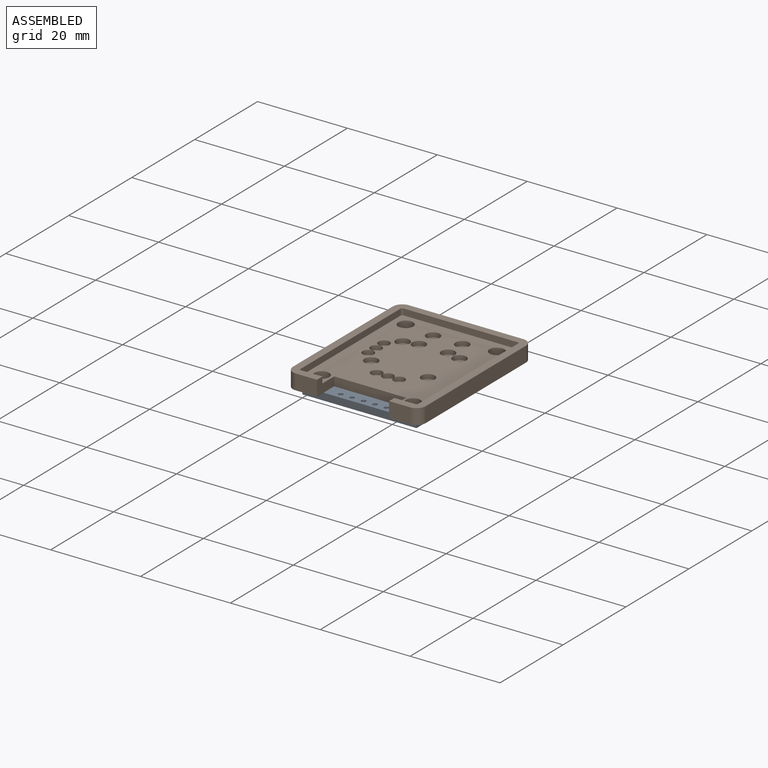
[diagram: assembled view]
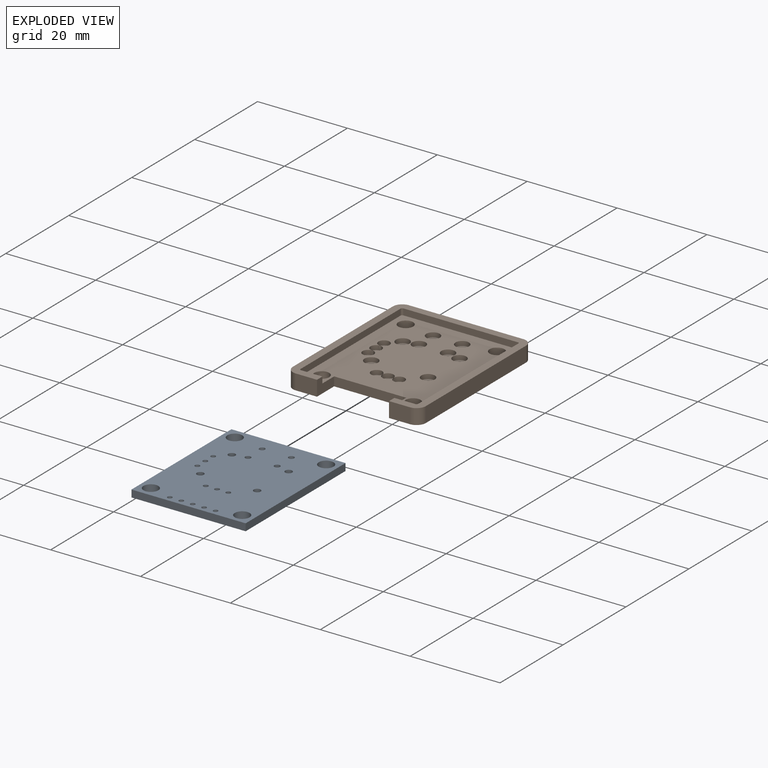
[diagram: exploded view]
GUIDED TOUR — FREECAD ASSEMBLY "thumbstick-breakout-orig"

This assembly has 2 components, labeled P0..P1 below (a component is one placed body or linked part; the same part can appear more than once), held together by 0 modeled joints plus 1 derived contact edge. A joint is a constraint between two components; its type names the relative motion it leaves free:
  CONTACT — a derived adjacency edge — the two components touch in the source model (clearance under 2% of the assembly's diagonal); it is measured from the geometry, not a modeled constraint.
Axis/direction vectors are unit vectors and 'through' points are millimeter coordinates, both in the assembly's world frame.

MATES
  1. CONTACT "contact_0_1": P0 <-> P1, contact direction (0.000, 1.000, 0.000) through (4.18, 2.70, 0.00) mm (derived from contact, not a modeled constraint)

ASSEMBLY ORDER
  1. P1 — the base component [order verified]
  2. P0 [order verified]
Order-tag legend:
  [order verified] — this step's position reverses a verified removal order: the component was checked to insert without passing through the ones already placed.

Of the 2 components, 1 carries a construction recipe — the FreeCAD feature program (sketches with constraints, then the solid features that consume them) that regenerates the part from scratch, quoted from this document or from the linked companion document it references; the rest are supplied as boundary geometry only. The tour below walks the components in assembly order: each is shown spotlighted twice — in the assembled view, then in the exploded view, where a leader line traces a displaced component back to its assembled socket (components that stay in place when exploded have no leader line; saturated green if recipe-attached, orange if geometry-only; every other component desaturated gray) — followed by its recipe or geometry summary and the mates that hold it.
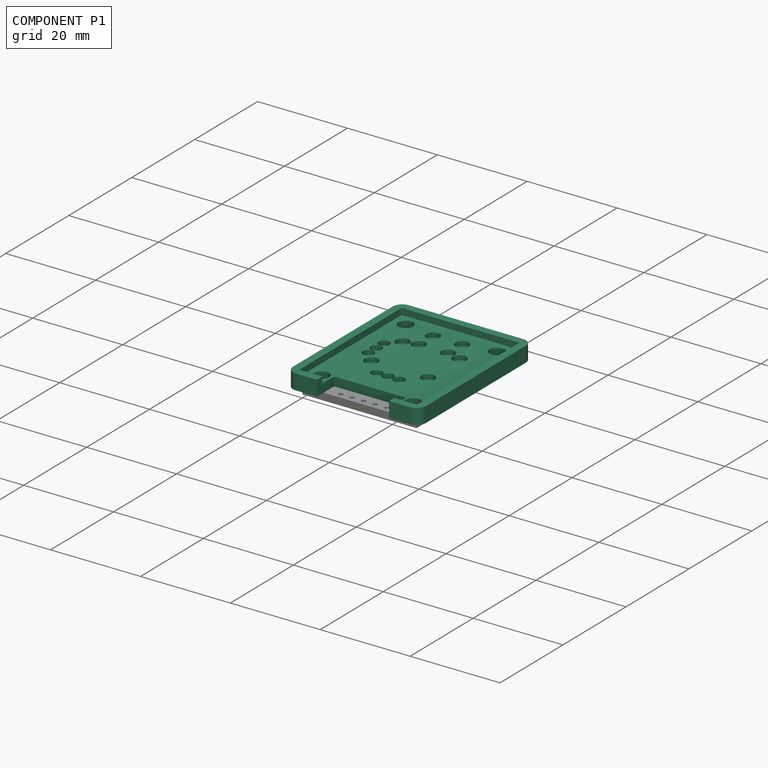
[diagram: component P1 — assembled]
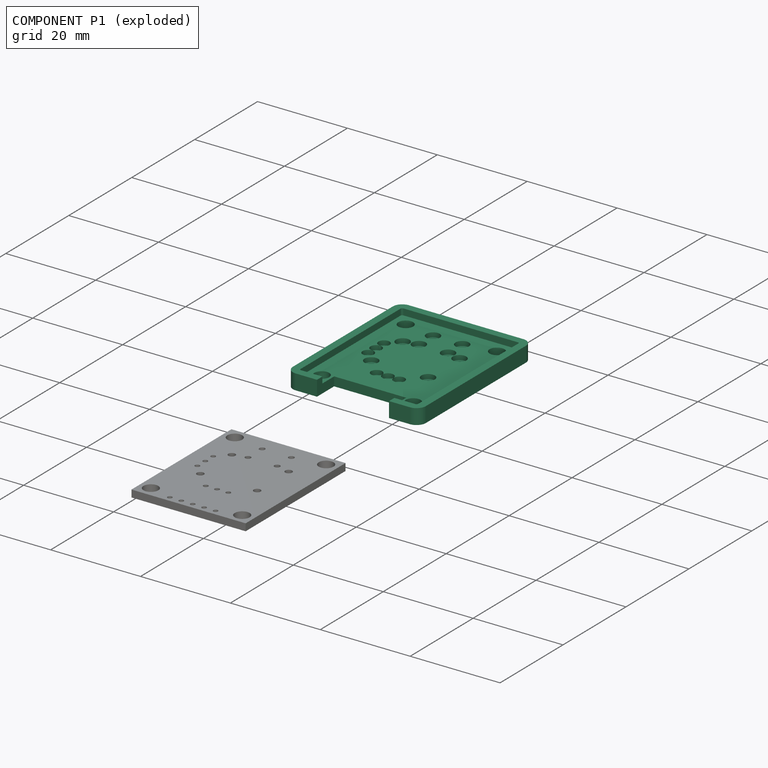
[diagram: component P1 — exploded]
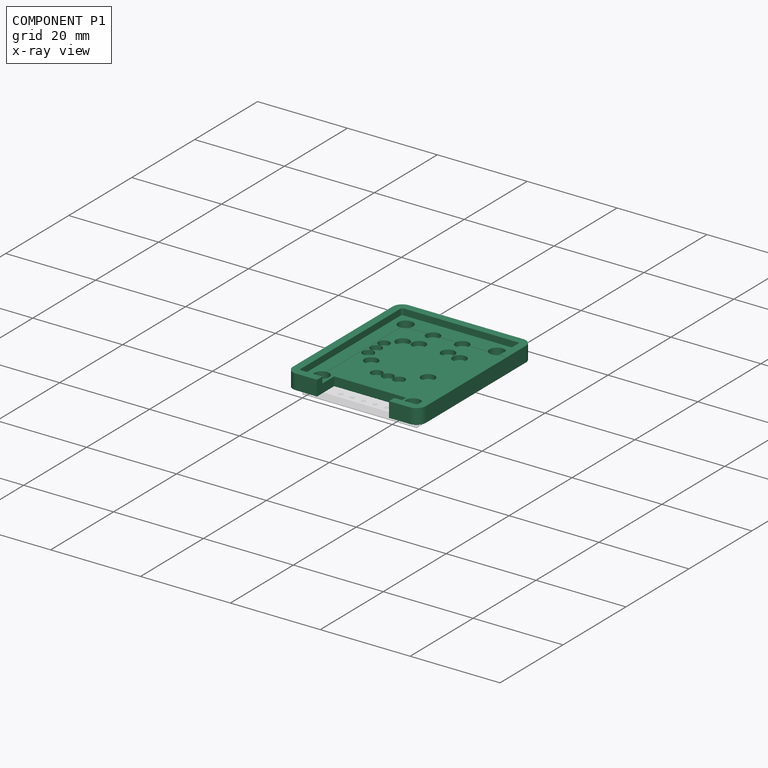
[diagram: component P1 — x-ray view]
COMPONENT P1 — recipe-attached ("case", modeled in this document).
Held by: resting contact with P0 (derived edge).
Construction recipe (the document's own serialized feature program — sketch geometry with constraints, then the solid features built on it; lengths are millimeters unless a unit is written):

FEATURE [Sketcher::SketchObject] Sketch003
  ArcFitTolerance = 1e-06
  FullyConstrained = false
  MakeInternals = false
  sketch-geometry (8):
    g0: LineSegment StartX=-2.1 StartY=31.75 StartZ=0 EndX=-2.1 EndY=0 EndZ=0
    g1: ArcOfCircle CenterX=0 CenterY=0 CenterZ=0 NormalX=0 NormalY=0 NormalZ=1 AngleXU=0 Radius=2.1 StartAngle=3.14159 EndAngle=4.71239
    g2: LineSegment StartX=-4e-16 StartY=-2.1 StartZ=0 EndX=25.4 EndY=-2.1 EndZ=0
    g3: ArcOfCircle CenterX=25.4 CenterY=0 CenterZ=0 NormalX=0 NormalY=0 NormalZ=1 AngleXU=1.5708 Radius=2.1 StartAngle=3.14159 EndAngle=4.71239
    g4: LineSegment StartX=27.5 StartY=-6e-16 StartZ=0 EndX=27.5 EndY=31.75 EndZ=0
    g5: ArcOfCircle CenterX=25.4 CenterY=31.75 CenterZ=0 NormalX=0 NormalY=0 NormalZ=1 AngleXU=-3.14159 Radius=2.1 StartAngle=3.14159 EndAngle=4.71239
    g6: LineSegment StartX=25.4 StartY=33.85 StartZ=0 EndX=0 EndY=33.85 EndZ=0
    g7: ArcOfCircle CenterX=0 CenterY=31.75 CenterZ=0 NormalX=0 NormalY=0 NormalZ=1 AngleXU=-1.5708 Radius=2.1 StartAngle=3.14159 EndAngle=4.71239
  constraints (12):
    c: Vertical(g0)
    c: Coincident(g0,g1)
    c: Coincident(g1,g2)
    c: Horizontal(g2)
    c: Coincident(g2,g3)
    c: Coincident(g3,g4)
    c: Vertical(g4)
    c: Coincident(g4,g5)
    c: Coincident(g5,g6)
    c: Horizontal(g6)
    c: Coincident(g6,g7)
    c: Coincident(g7,g0)
FEATURE [PartDesign::ShapeBinder] ShapeBinder
  Placement = pos=(-137.3,117.78,0) rot=(0,0,1;0rad)
  Support = -> [Pcb_bbd4]
  TraceSupport = false
FEATURE [Sketcher::SketchObject] Sketch002
  ArcFitTolerance = 1e-06
  ExternalGeometry = -> [ShapeBinder]
  FullyConstrained = false
  MakeInternals = false
  sketch-geometry (16):
    g0: Circle CenterX=2.54 CenterY=29.21 CenterZ=0 NormalX=0 NormalY=0 NormalZ=1 AngleXU=0 Radius=1.651
    g1: Circle CenterX=22.86 CenterY=29.21 CenterZ=0 NormalX=0 NormalY=0 NormalZ=1 AngleXU=0 Radius=1.651
    g2: Circle CenterX=22.86 CenterY=2.54 CenterZ=0 NormalX=0 NormalY=0 NormalZ=1 AngleXU=0 Radius=1.651
    g3: Circle CenterX=2.54 CenterY=2.54 CenterZ=0 NormalX=0 NormalY=0 NormalZ=1 AngleXU=0 Radius=1.651
    g4: LineSegment StartX=-2.1 StartY=31.75 StartZ=0 EndX=-2.1 EndY=-7.27461e-07 EndZ=0
    g5: ArcOfCircle CenterX=1.003e-13 CenterY=0 CenterZ=0 NormalX=0 NormalY=0 NormalZ=1 AngleXU=0 Radius=2.1 StartAngle=3.14159 EndAngle=4.71239
    g6: ArcOfCircle CenterX=25.4 CenterY=0 CenterZ=0 NormalX=0 NormalY=0 NormalZ=1 AngleXU=0 Radius=2.1 StartAngle=4.71239 EndAngle=6.28318
    g7: LineSegment StartX=27.5 StartY=-6.45077e-07 StartZ=0 EndX=27.5 EndY=31.75 EndZ=0
    g8: ArcOfCircle CenterX=25.4 CenterY=31.75 CenterZ=0 NormalX=0 NormalY=0 NormalZ=1 AngleXU=0 Radius=2.1 StartAngle=0 EndAngle=1.5708
    g9: LineSegment StartX=25.4 StartY=33.85 StartZ=0 EndX=6.86269e-07 EndY=33.85 EndZ=0
    g10: ArcOfCircle CenterX=0 CenterY=31.75 CenterZ=0 NormalX=0 NormalY=0 NormalZ=1 AngleXU=0 Radius=2.1 StartAngle=1.5708 EndAngle=3.14159
    g11: LineSegment StartX=20.762 StartY=-2.1 StartZ=0 EndX=20.762 EndY=3.34784 EndZ=0
    g12: LineSegment StartX=20.762 StartY=3.34784 StartZ=0 EndX=4.72625 EndY=3.34784 EndZ=0
    g13: LineSegment StartX=4.72625 StartY=3.34784 StartZ=0 EndX=4.72625 EndY=-2.1 EndZ=0
    g14: LineSegment StartX=20.762 StartY=-2.1 StartZ=0 EndX=25.4 EndY=-2.1 EndZ=0
    g15: LineSegment StartX=4.72625 StartY=-2.1 StartZ=0 EndX=4.11922e-08 EndY=-2.1 EndZ=0
  constraints (28):
    c: Coincident(g0,g-3)
    c: Equal(g0,g-3)
    c: Coincident(g1,g-4)
    c: Equal(g1,g-4)
    c: Coincident(g2,g-5)
    c: Equal(g2,g-5)
    c: Coincident(g3,g-6)
    c: Equal(g3,g-6)
    c: Vertical(g4)
    c: Coincident(g4,g5)
    c: Coincident(g6,g7)
    c: Vertical(g7)
    c: Coincident(g7,g8)
    c: Coincident(g8,g9)
    c: Horizontal(g9)
    c: Coincident(g9,g10)
    c: Coincident(g10,g4)
    c: Coincident(g11,g12)
    c: Coincident(g12,g13)
    c: Horizontal(g12)
    c: Vertical(g11)
    c: Vertical(g13)
    c: Coincident(g11,g14)
    c: Coincident(g14,g6)
    c: Horizontal(g14)
    c: Coincident(g13,g15)
    c: Coincident(g15,g5)
    c: Horizontal(g15)
FEATURE [PartDesign::Pad] Pad
  Direction = (0,0,1)
  Length = 2
  Length2 = 10
  Profile = -> Sketch002
  ReferenceAxis = -> Sketch002 [N_Axis]
  Refine = true
  Suppressed = false
  Type = 0
FEATURE [Sketcher::SketchObject] Sketch004
  ArcFitTolerance = 1e-06
  AttachmentSupport = -> [Pad]
  ExternalGeometry = -> [ShapeBinder]
  FullyConstrained = true
  MakeInternals = false
  MapMode = 5
  Placement = pos=(0,0,2) rot=(0,0,1;0rad)
  sketch-geometry (14):
    g0: Circle CenterX=9.45 CenterY=28.03 CenterZ=0 NormalX=0 NormalY=0 NormalZ=1 AngleXU=0 Radius=1.5
    g1: Circle CenterX=15.95 CenterY=28.03 CenterZ=0 NormalX=0 NormalY=0 NormalZ=1 AngleXU=0 Radius=1.5
    g2: Circle CenterX=19.025 CenterY=22.78 CenterZ=0 NormalX=0 NormalY=0 NormalZ=1 AngleXU=0 Radius=1.5
    g3: Circle CenterX=15.95 CenterY=23.53 CenterZ=0 NormalX=0 NormalY=0 NormalZ=1 AngleXU=0 Radius=1.5
    g4: Circle CenterX=9.45 CenterY=23.53 CenterZ=0 NormalX=0 NormalY=0 NormalZ=1 AngleXU=0 Radius=1.5
    g5: Circle CenterX=6.375 CenterY=22.78 CenterZ=0 NormalX=0 NormalY=0 NormalZ=1 AngleXU=0 Radius=1.5
    g6: Circle CenterX=3.97 CenterY=20.28 CenterZ=0 NormalX=0 NormalY=0 NormalZ=1 AngleXU=0 Radius=1.25
    g7: Circle CenterX=3.97 CenterY=17.78 CenterZ=0 NormalX=0 NormalY=0 NormalZ=1 AngleXU=0 Radius=1.25
    g8: Circle CenterX=3.97 CenterY=15.28 CenterZ=0 NormalX=0 NormalY=0 NormalZ=1 AngleXU=0 Radius=1.25
    g9: Circle CenterX=6.375 CenterY=12.78 CenterZ=0 NormalX=0 NormalY=0 NormalZ=1 AngleXU=0 Radius=1.5
    g10: Circle CenterX=10.2 CenterY=9.05 CenterZ=0 NormalX=0 NormalY=0 NormalZ=1 AngleXU=0 Radius=1.25
    g11: Circle CenterX=12.7 CenterY=9.05 CenterZ=0 NormalX=0 NormalY=0 NormalZ=1 AngleXU=0 Radius=1.25
    g12: Circle CenterX=15.2 CenterY=9.05 CenterZ=0 NormalX=0 NormalY=0 NormalZ=1 AngleXU=0 Radius=1.25
    g13: Circle CenterX=19.025 CenterY=12.78 CenterZ=0 NormalX=0 NormalY=0 NormalZ=1 AngleXU=0 Radius=1.5
  constraints (28):
    c: Coincident(g0,g-3)
    c: Coincident(g1,g-4)
    c: Coincident(g2,g-6)
    c: Coincident(g3,g-5)
    c: Coincident(g4,g-16)
    c: Coincident(g5,g-15)
    c: Coincident(g6,g-14)
    c: Coincident(g7,g-13)
    c: Coincident(g8,g-12)
    c: Coincident(g9,g-11)
    c: Coincident(g10,g-10)
    c: Coincident(g11,g-9)
    c: Coincident(g12,g-8)
    c: Coincident(g13,g-7)
    c: Diameter(g0) = 3
    c: Equal(g1,g3)
    c: Equal(g3,g2)
    c: Equal(g2,g4)
    c: Equal(g4,g5)
    c: Equal(g5,g9)
    c: Equal(g9,g13)
    c: Equal(g13,g0)
    c: Diameter(g6) = 2.5
    c: Equal(g6,g7)
    c: Equal(g7,g8)
    c: Equal(g8,g10)
    c: Equal(g10,g11)
    c: Equal(g11,g12)
FEATURE [PartDesign::Pocket] Pocket
  BaseFeature = -> Pad
  Direction = (0,0,-1)
  Length = 1
  Length2 = 5
  Profile = -> Sketch004
  ReferenceAxis = -> Sketch004 [N_Axis]
  Refine = true
  Suppressed = false
  Type = 0
FEATURE [Sketcher::SketchObject] Sketch005
  ArcFitTolerance = 1e-06
  AttachmentSupport = -> [Pocket]
  FullyConstrained = false
  MakeInternals = false
  MapMode = 5
  Placement = pos=(0,0,2) rot=(0,0,1;0rad)
  sketch-geometry (22):
    g0: LineSegment StartX=-2.1 StartY=31.75 StartZ=0 EndX=-2.1 EndY=-7.27461e-07 EndZ=0
    g1: ArcOfCircle CenterX=-4e-16 CenterY=0 CenterZ=0 NormalX=0 NormalY=0 NormalZ=1 AngleXU=0 Radius=2.1 StartAngle=3.14159 EndAngle=4.71239
    g2: ArcOfCircle CenterX=25.4 CenterY=0 CenterZ=0 NormalX=0 NormalY=0 NormalZ=1 AngleXU=0 Radius=2.1 StartAngle=4.71239 EndAngle=6.28318
    g3: LineSegment StartX=27.5 StartY=-6.45077e-07 StartZ=0 EndX=27.5 EndY=31.75 EndZ=0
    g4: ArcOfCircle CenterX=25.4 CenterY=31.75 CenterZ=0 NormalX=0 NormalY=0 NormalZ=1 AngleXU=0 Radius=2.1 StartAngle=0 EndAngle=1.5708
    g5: LineSegment StartX=25.4 StartY=33.85 StartZ=0 EndX=6.86269e-07 EndY=33.85 EndZ=0
    g6: ArcOfCircle CenterX=0 CenterY=31.75 CenterZ=0 NormalX=0 NormalY=0 NormalZ=1 AngleXU=0 Radius=2.1 StartAngle=1.5708 EndAngle=3.14159
    g7: LineSegment [constr] StartX=20.762 StartY=-2.1 StartZ=0 EndX=20.762 EndY=3.34784 EndZ=0
    g8: LineSegment [constr] StartX=4.72625 StartY=3.34784 StartZ=0 EndX=4.72625 EndY=-2.1 EndZ=0
    g9: LineSegment StartX=20.762 StartY=-2.1 StartZ=0 EndX=25.4 EndY=-2.1 EndZ=0
    g10: LineSegment StartX=4.72625 StartY=-2.1 StartZ=0 EndX=-9e-16 EndY=-2.1 EndZ=0
    g11: LineSegment StartX=-0.4 StartY=31.75 StartZ=0 EndX=-0.4 EndY=0.0158339 EndZ=0
    g12: ArcOfCircle CenterX=0 CenterY=0.015834 CenterZ=0 NormalX=0 NormalY=0 NormalZ=1 AngleXU=0 Radius=0.4 StartAngle=3.14159 EndAngle=4.71239
    g13: ArcOfCircle CenterX=25.4 CenterY=0 CenterZ=0 NormalX=0 NormalY=0 NormalZ=1 AngleXU=0 Radius=0.4 StartAngle=4.71239 EndAngle=6.28318
    g14: LineSegment StartX=25.8 StartY=-1.22872e-07 StartZ=0 EndX=25.8 EndY=31.75 EndZ=0
    g15: ArcOfCircle CenterX=25.4 CenterY=31.75 CenterZ=0 NormalX=0 NormalY=0 NormalZ=1 AngleXU=0 Radius=0.4 StartAngle=0 EndAngle=1.5708
    g16: LineSegment StartX=25.4 StartY=32.15 StartZ=0 EndX=1.30718e-07 EndY=32.15 EndZ=0
    g17: ArcOfCircle CenterX=0 CenterY=31.75 CenterZ=0 NormalX=0 NormalY=0 NormalZ=1 AngleXU=0 Radius=0.4 StartAngle=1.5708 EndAngle=3.14159
    g18: LineSegment StartX=4.72625 StartY=-0.384166 StartZ=0 EndX=7.84612e-09 EndY=-0.384166 EndZ=0
    g19: LineSegment StartX=4.72625 StartY=-0.384166 StartZ=0 EndX=4.72625 EndY=-2.1 EndZ=0
    g20: LineSegment StartX=20.762 StartY=-0.4 StartZ=0 EndX=25.4 EndY=-0.4 EndZ=0
    g21: LineSegment StartX=20.762 StartY=-0.4 StartZ=0 EndX=20.762 EndY=-2.1 EndZ=0
  constraints (36):
    c: Vertical(g0)
    c: Coincident(g0,g1)
    c: Coincident(g2,g3)
    c: Vertical(g3)
    c: Coincident(g3,g4)
    c: Coincident(g4,g5)
    c: Horizontal(g5)
    c: Coincident(g5,g6)
    c: Coincident(g6,g0)
    c: Vertical(g7)
    c: Vertical(g8)
    c: Coincident(g7,g9)
    c: Coincident(g9,g2)
    c: Horizontal(g9)
    c: Coincident(g8,g10)
    c: Coincident(g10,g1)
    c: Horizontal(g10)
    c: Vertical(g11)
    c: Coincident(g11,g12)
    c: Coincident(g13,g14)
    c: Vertical(g14)
    c: Coincident(g14,g15)
    c: Coincident(g15,g16)
    c: Horizontal(g16)
    c: Coincident(g16,g17)
    c: Coincident(g17,g11)
    c: PointOnObject(g18,g8)
    c: Coincident(g18,g12)
    c: Horizontal(g18)
    c: Coincident(g18,g19)
    c: Coincident(g19,g8)
    c: PointOnObject(g20,g7)
    c: Coincident(g20,g13)
    c: Horizontal(g20)
    c: Coincident(g20,g21)
    c: Coincident(g21,g7)
FEATURE [PartDesign::Pad] Pad001
  BaseFeature = -> Pocket
  Direction = (0,0,1)
  Length = 1.4
  Length2 = 10
  Profile = -> Sketch005
  ReferenceAxis = -> Sketch005 [N_Axis]
  Refine = true
  Suppressed = false
  Type = 0
FEATURE [PartDesign::Body] Body  label="base"
  AllowCompound = false
  Group = -> [ShapeBinder,Sketch002,Sketch003,Pad,Sketch004,Pocket,Sketch005,Pad001]
  Origin = -> Origin004
  Tip = -> Pad001
FEATURE [PartDesign::ShapeBinder] ShapeBinder001
  Placement = pos=(-137.3,117.78,0) rot=(0,0,1;0rad)
  Support = -> [Pcb_bbd4]
  TraceSupport = false
FEATURE [Sketcher::SketchObject] PCB_Sketch_bbd005
  ArcFitTolerance = 1e-06
  FullyConstrained = false
  MakeInternals = false
  sketch-geometry (4):
    g0: LineSegment StartX=0 StartY=31.75 StartZ=0 EndX=0 EndY=0 EndZ=0
    g1: LineSegment StartX=25.4 StartY=31.75 StartZ=0 EndX=0 EndY=31.75 EndZ=0
    g2: LineSegment StartX=0 StartY=0 StartZ=0 EndX=25.4 EndY=0 EndZ=0
    g3: LineSegment StartX=25.4 StartY=0 StartZ=0 EndX=25.4 EndY=31.75 EndZ=0
  constraints (4):
    c: Coincident(g0,g2)
    c: Coincident(g0,g1)
    c: Coincident(g2,g3)
    c: Coincident(g1,g3)
FEATURE [Sketcher::SketchObject] Sketch007
  ArcFitTolerance = 1e-06
  FullyConstrained = false
  MakeInternals = false
  sketch-geometry (8):
    g0: LineSegment StartX=-2.1 StartY=31.75 StartZ=0 EndX=-2.1 EndY=0 EndZ=0
    g1: ArcOfCircle CenterX=0 CenterY=0 CenterZ=0 NormalX=0 NormalY=0 NormalZ=1 AngleXU=0 Radius=2.1 StartAngle=3.14159 EndAngle=4.71239
    g2: LineSegment StartX=-4e-16 StartY=-2.1 StartZ=0 EndX=25.4 EndY=-2.1 EndZ=0
    g3: ArcOfCircle CenterX=25.4 CenterY=0 CenterZ=0 NormalX=0 NormalY=0 NormalZ=1 AngleXU=1.5708 Radius=2.1 StartAngle=3.14159 EndAngle=4.71239
    g4: LineSegment StartX=27.5 StartY=-6e-16 StartZ=0 EndX=27.5 EndY=31.75 EndZ=0
    g5: ArcOfCircle CenterX=25.4 CenterY=31.75 CenterZ=0 NormalX=0 NormalY=0 NormalZ=1 AngleXU=-3.14159 Radius=2.1 StartAngle=3.14159 EndAngle=4.71239
    g6: LineSegment StartX=25.4 StartY=33.85 StartZ=0 EndX=0 EndY=33.85 EndZ=0
    g7: ArcOfCircle CenterX=0 CenterY=31.75 CenterZ=0 NormalX=0 NormalY=0 NormalZ=1 AngleXU=-1.5708 Radius=2.1 StartAngle=3.14159 EndAngle=4.71239
  constraints (12):
    c: Vertical(g0)
    c: Coincident(g0,g1)
    c: Coincident(g1,g2)
    c: Horizontal(g2)
    c: Coincident(g2,g3)
    c: Coincident(g3,g4)
    c: Vertical(g4)
    c: Coincident(g4,g5)
    c: Coincident(g5,g6)
    c: Horizontal(g6)
    c: Coincident(g6,g7)
    c: Coincident(g7,g0)
FEATURE [PartDesign::Pad] Pad002
  Direction = (0,0,1)
  Length = 16
  Length2 = 10
  Profile = -> Sketch007
  ReferenceAxis = -> Sketch007 [N_Axis]
  Refine = true
  Suppressed = false
  Type = 0
FEATURE [PartDesign::Plane] DatumPlane
  AttachmentOffset = pos=(0,0,-2) rot=(0,0,1;0rad)
  AttachmentSupport = -> [Pad002]
  Length = 63.6169
  MapMode = 5
  Placement = pos=(0,0,14) rot=(0,0,1;0rad)
  ResizeMode = 0
  Width = 69.9669
FEATURE [PartDesign::Pocket] Pocket001
  BaseFeature = -> Pad002
  Direction = (0,0,-1)
  Length = 5
  Length2 = 5
  Profile = -> PCB_Sketch_bbd005
  ReferenceAxis = -> PCB_Sketch_bbd005 [N_Axis]
  Refine = true
  Reversed = true
  Suppressed = false
  Type = 5
  UpToShape = -> [DatumPlane]
FEATURE [Sketcher::SketchObject] Sketch008
  ArcFitTolerance = 1e-06
  AttachmentSupport = -> [Pocket001]
  ExternalGeometry = -> [ShapeBinder001]
  FullyConstrained = false
  MakeInternals = false
  MapMode = 5
  Placement = pos=(0,0,0) rot=(1,0,0;3.14159rad)
  sketch-geometry (20):
    g0: Circle [constr] CenterX=2.54 CenterY=-2.54 CenterZ=0 NormalX=0 NormalY=0 NormalZ=1 AngleXU=0 Radius=3
    g1: Circle [constr] CenterX=22.86 CenterY=-2.54 CenterZ=0 NormalX=0 NormalY=0 NormalZ=1 AngleXU=0 Radius=3
    g2: Circle [constr] CenterX=22.86 CenterY=-29.21 CenterZ=0 NormalX=0 NormalY=0 NormalZ=1 AngleXU=0 Radius=3
    g3: Circle [constr] CenterX=2.54 CenterY=-29.21 CenterZ=0 NormalX=0 NormalY=0 NormalZ=1 AngleXU=0 Radius=3
    g4: Circle CenterX=2.54 CenterY=-2.54 CenterZ=0 NormalX=0 NormalY=0 NormalZ=1 AngleXU=0 Radius=1.65
    g5: Circle CenterX=22.86 CenterY=-2.54 CenterZ=0 NormalX=0 NormalY=0 NormalZ=1 AngleXU=0 Radius=1.65
    g6: Circle CenterX=22.86 CenterY=-29.21 CenterZ=0 NormalX=0 NormalY=0 NormalZ=1 AngleXU=0 Radius=1.65
    g7: Circle CenterX=2.54 CenterY=-29.21 CenterZ=0 NormalX=0 NormalY=0 NormalZ=1 AngleXU=0 Radius=1.65
    g8: ArcOfCircle CenterX=2.54 CenterY=-2.54 CenterZ=0 NormalX=0 NormalY=0 NormalZ=1 AngleXU=0 Radius=3 StartAngle=3.69685 EndAngle=7.29447
    g9: ArcOfCircle CenterX=22.86 CenterY=-2.54 CenterZ=0 NormalX=0 NormalY=0 NormalZ=1 AngleXU=0 Radius=3 StartAngle=2.12958 EndAngle=5.72379
    g10: ArcOfCircle CenterX=22.86 CenterY=-29.21 CenterZ=0 NormalX=0 NormalY=0 NormalZ=1 AngleXU=0 Radius=3 StartAngle=0.558962 EndAngle=4.15105
    g11: ArcOfCircle CenterX=2.54 CenterY=-29.21 CenterZ=0 NormalX=0 NormalY=0 NormalZ=1 AngleXU=0 Radius=3 StartAngle=5.26483 EndAngle=8.86733
    g12: LineSegment StartX=-0.441952 StartY=0.853646 StartZ=0 EndX=4.13233 EndY=0.0025369 EndZ=0
    g13: LineSegment StartX=-0.441952 StartY=0.853646 StartZ=0 EndX=-0.00930062 EndY=-4.12148 EndZ=0
    g14: LineSegment StartX=26.0022 StartY=0.859798 StartZ=0 EndX=21.2695 EndY=0.00370015 EndZ=0
    g15: LineSegment StartX=26.0022 StartY=0.859798 StartZ=0 EndX=25.4027 EndY=-4.13202 EndZ=0
    g16: LineSegment StartX=26.2817 StartY=-32.3942 StartZ=0 EndX=25.4034 EndY=-27.6191 EndZ=0
    g17: LineSegment StartX=26.2817 StartY=-32.3942 StartZ=0 EndX=21.263 EndY=-31.7496 EndZ=0
    g18: LineSegment StartX=-0.605919 StartY=-32.7383 StartZ=0 EndX=4.11429 EndY=-31.7637 EndZ=0
    g19: LineSegment StartX=-0.605919 StartY=-32.7383 StartZ=0 EndX=-0.00581747 EndY=-27.6229 EndZ=0
  constraints (36):
    c: Diameter(g0) = 6
    c: Coincident(g0,g-3)
    c: Diameter(g1) = 6
    c: Coincident(g1,g-4)
    c: Diameter(g2) = 6
    c: Coincident(g2,g-5)
    c: Diameter(g3) = 6
    c: Coincident(g3,g-6)
    c: Diameter(g4) = 3.3
    c: Coincident(g4,g0)
    c: Diameter(g5) = 3.3
    c: Coincident(g5,g1)
    c: Diameter(g6) = 3.3
    c: Coincident(g6,g2)
    c: Diameter(g7) = 3.3
    c: Coincident(g7,g3)
    c: Coincident(g8,g0)
    c: PointOnObject(g8,g0)
    c: Coincident(g9,g1)
    c: PointOnObject(g9,g1)
    c: Coincident(g10,g2)
    c: PointOnObject(g10,g2)
    c: Coincident(g11,g3)
    c: PointOnObject(g11,g3)
    c: Coincident(g12,g8)
    c: Coincident(g12,g13)
    c: Coincident(g13,g8)
    c: Coincident(g14,g9)
    c: Coincident(g14,g15)
    c: Coincident(g15,g9)
    c: Coincident(g16,g10)
    c: Coincident(g16,g17)
    c: Coincident(g17,g10)
    c: Coincident(g18,g11)
    c: Coincident(g18,g19)
    c: Coincident(g19,g11)
FEATURE [PartDesign::Pad] Pad003
  BaseFeature = -> Pocket001
  Direction = (0,0,-1)
  Length = 3
  Length2 = 10
  Profile = -> Sketch008
  ReferenceAxis = -> Sketch008 [N_Axis]
  Refine = true
  Reversed = true
  Suppressed = false
  Type = 0
FEATURE [Sketcher::SketchObject] Sketch009
  ArcFitTolerance = 1e-06
  AttachmentSupport = -> [Pad003]
  ExternalGeometry = -> [Pad003]
  FullyConstrained = true
  MakeInternals = false
  MapMode = 5
  Placement = pos=(0,0,16) rot=(0,0,1;0rad)
  sketch-geometry (3):
    g0: LineSegment [constr] StartX=12.7011 StartY=31.75 StartZ=0 EndX=12.7011 EndY=17.78 EndZ=0
    g1: LineSegment [constr] StartX=12.7011 StartY=17.78 StartZ=0 EndX=25.4 EndY=17.78 EndZ=0
    g2: Circle [constr] CenterX=12.7011 CenterY=17.78 CenterZ=0 NormalX=0 NormalY=0 NormalZ=1 AngleXU=0 Radius=12
  constraints (8):
    c: Symmetric(g-3,g-3,g0)
    c: Vertical(g0)
    c: Coincident(g0,g1)
    c: PointOnObject(g1,g-4)
    c: Horizontal(g1)
    c: DistanceY(g0,g0) = 13.97
    c: Diameter(g2) = 24
    c: Coincident(g2,g0)
FEATURE [PartDesign::Body] Body001  label="top"
  AllowCompound = false
  Group = -> [ShapeBinder001,Sketch007,Pad002,DatumPlane,PCB_Sketch_bbd005,Pocket001,Sketch008,Pad003,Sketch009]
  Origin = -> Origin005
  Placement = pos=(0,0,3.6) rot=(0,0,1;0rad)
  Tip = -> Pad003
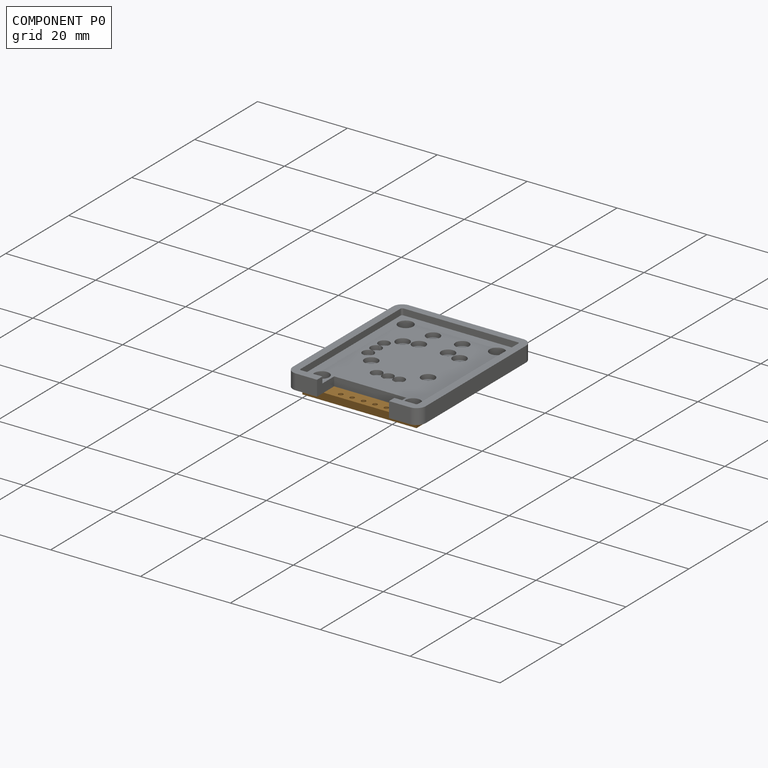
[diagram: component P0 — assembled]
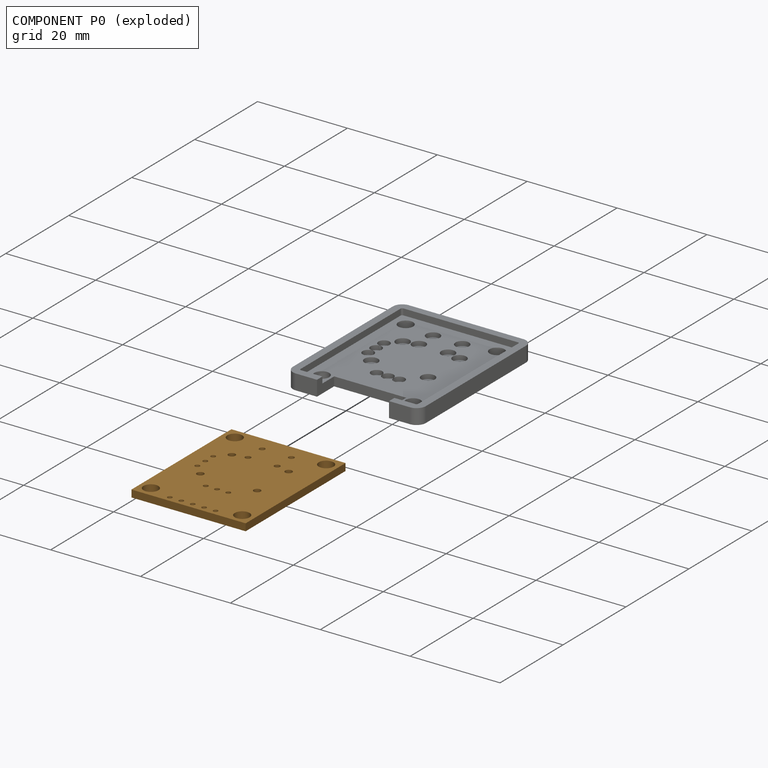
[diagram: component P0 — exploded]
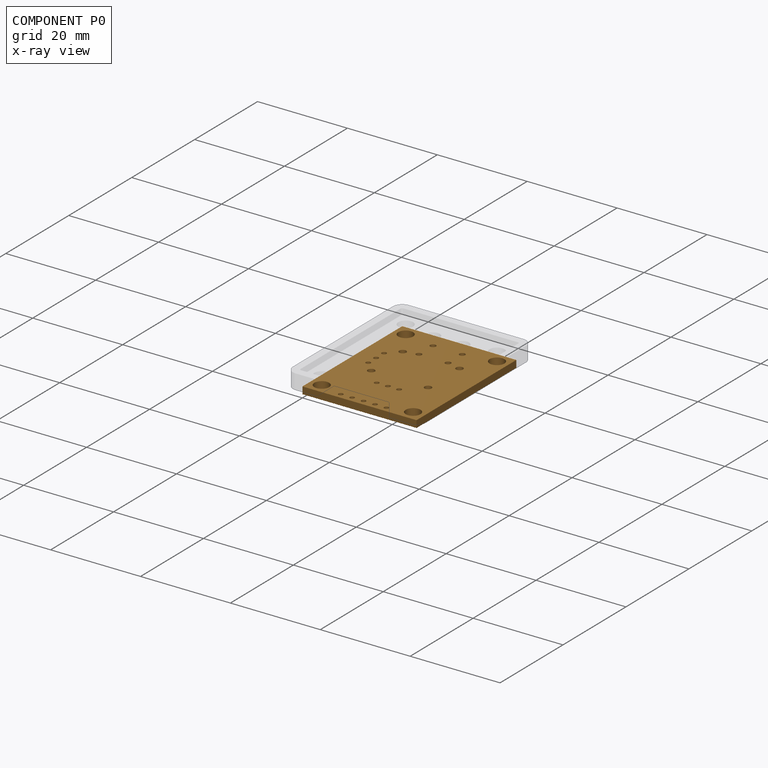
[diagram: component P0 — x-ray view]
COMPONENT P0 — geometry summary ("thumbstick-breakout"; no construction recipe available for this part):
  bounding box: 31.8 x 25.4 x 1.6 mm
  tessellated surface: 11,696 triangles
  volume: 1201 mm^3 (93% of its bounding box)
  symmetry: 2-fold rotationally symmetric about the y axis; mirror-symmetric across its z mid-plane
Held by: resting contact with P1 (derived edge).
PROVENANCE & LICENSES
Assembly and component geometry: a FreeCAD (.FCStd) document from a public repository crawl; components, placements and joints were extracted with FreeCAD and each solid tessellated.
Construction recipes: the document's own serialized feature recipes (and, for linked parts, the recipes of companion documents from the same project).
License: gpl-3.0.
Joints: native FreeCAD joints and A2plus constraints are mapped to standard mate types; edges marked 'derived from contact' connect touching components and are measured from the geometry, not modeled.
Verification: 1 of this assembly's 2 components carries a construction recipe (1 from this document itself); the rest are geometry-only. Every component's tessellation passed the extraction mesh gates (mesh-volume checksum against the B-rep where available, bounding-box inflation <= 2%).
Renders: orthographic iso camera (az 35 / el 25); the floor grid conveys scale (grid pitch printed in each image; no ruler). In the exploded view each component is displaced by its stored offset vector: the offsets alone carry the explosion direction (mate normal/axis signs are not orientation cues and do not encode it), and separation distances are assigned per mate-chain, not proportionally to assembly-order depth.
